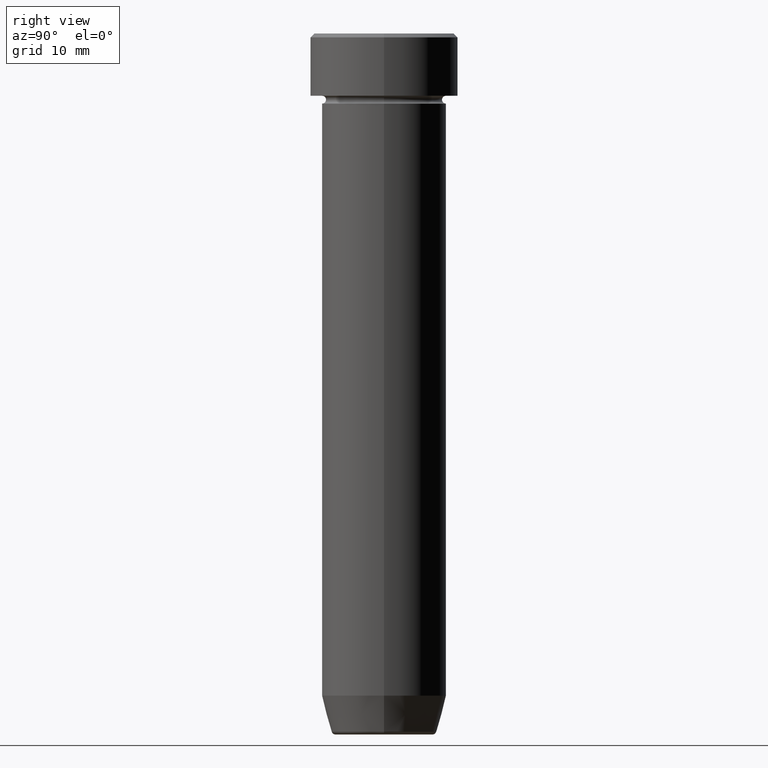
[diagram: clean part render]
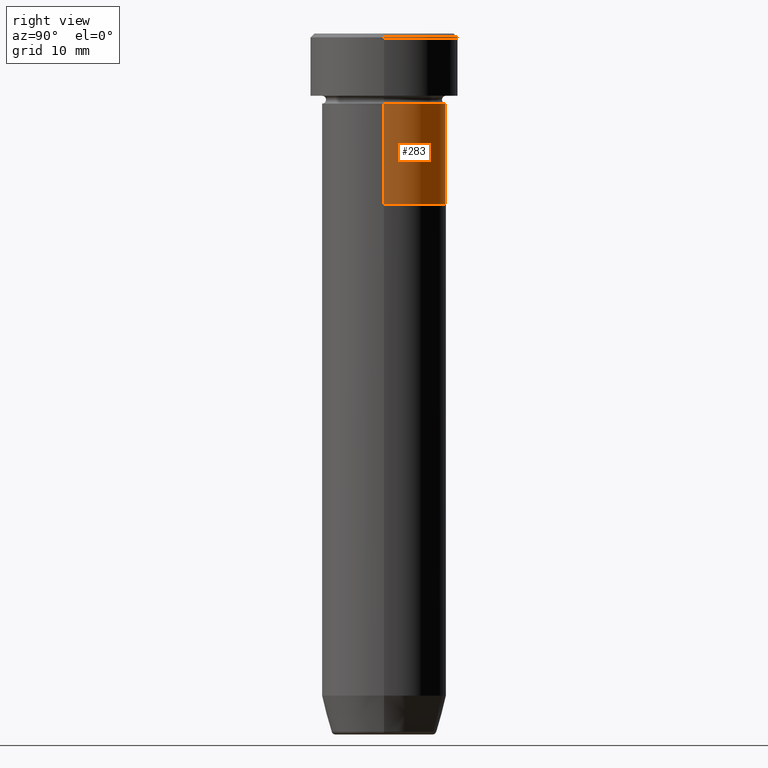
[diagram: same view with one face highlighted and labeled with its STEP entity id]
A machine part, right view. The second image highlights one B-rep face of the part: STEP entity #283.
In plain terms, the highlighted cylindrical surface (partial cylindrical patch) has radius 8 mm, axis along (-0, -0, 1).
Its self-contained STEP definition (entity closure, byte-faithful):
#25 = DIRECTION ( 'NONE',  ( -0.000000000000000000, -0.000000000000000000, 1.000000000000000000 ) ) ;
#33 = DIRECTION ( 'NONE',  ( 1.000000000000000000, 0.000000000000000000, 0.000000000000000000 ) ) ;
#46 = CARTESIAN_POINT ( 'NONE',  ( -8.000000000000000000, 9.797174393178825657E-16, 0.000000000000000000 ) ) ;
#91 = EDGE_CURVE ( 'NONE', #150, #245, #586, .T. ) ;
#94 = CIRCLE ( 'NONE', #285, 8.000000000000000000 ) ;
#97 = CARTESIAN_POINT ( 'NONE',  ( 8.000000000000000000, 0.000000000000000000, 0.000000000000000000 ) ) ;
#104 = ORIENTED_EDGE ( 'NONE', *, *, #560, .T. ) ;
#110 = DIRECTION ( 'NONE',  ( 1.000000000000000000, 0.000000000000000000, 0.000000000000000000 ) ) ;
#130 = DIRECTION ( 'NONE',  ( 1.000000000000000000, 0.000000000000000000, 0.000000000000000000 ) ) ;
#131 = AXIS2_PLACEMENT_3D ( 'NONE', #400, #25, #33 ) ;
#138 = CARTESIAN_POINT ( 'NONE',  ( 0.000000000000000000, 0.000000000000000000, -22.00000000000000000 ) ) ;
#140 = ORIENTED_EDGE ( 'NONE', *, *, #371, .F. ) ;
#150 = VERTEX_POINT ( 'NONE', #396 ) ;
#176 = FACE_OUTER_BOUND ( 'NONE', #259, .T. ) ;
#180 = CYLINDRICAL_SURFACE ( 'NONE', #309, 8.000000000000000000 ) ;
#211 = VECTOR ( 'NONE', #372, 1000.000000000000000 ) ;
#212 = VECTOR ( 'NONE', #230, 1000.000000000000000 ) ;
#230 = DIRECTION ( 'NONE',  ( -0.000000000000000000, -0.000000000000000000, 1.000000000000000000 ) ) ;
#245 = VERTEX_POINT ( 'NONE', #540 ) ;
#259 = EDGE_LOOP ( 'NONE', ( #329, #104, #520, #140 ) ) ;
#283 = ADVANCED_FACE ( 'NONE', ( #176 ), #180, .T. ) ;
#284 = LINE ( 'NONE', #46, #212 ) ;
#285 = AXIS2_PLACEMENT_3D ( 'NONE', #138, #325, #110 ) ;
#309 = AXIS2_PLACEMENT_3D ( 'NONE', #366, #319, #130 ) ;
#319 = DIRECTION ( 'NONE',  ( -0.000000000000000000, -0.000000000000000000, 1.000000000000000000 ) ) ;
#325 = DIRECTION ( 'NONE',  ( -0.000000000000000000, -0.000000000000000000, 1.000000000000000000 ) ) ;
#329 = ORIENTED_EDGE ( 'NONE', *, *, #412, .T. ) ;
#334 = VERTEX_POINT ( 'NONE', #589 ) ;
#366 = CARTESIAN_POINT ( 'NONE',  ( 0.000000000000000000, 0.000000000000000000, 0.000000000000000000 ) ) ;
#371 = EDGE_CURVE ( 'NONE', #527, #150, #380, .T. ) ;
#372 = DIRECTION ( 'NONE',  ( -0.000000000000000000, -0.000000000000000000, 1.000000000000000000 ) ) ;
#380 = LINE ( 'NONE', #97, #211 ) ;
#396 = CARTESIAN_POINT ( 'NONE',  ( 8.000000000000000000, 0.000000000000000000, -9.000000000000001776 ) ) ;
#400 = CARTESIAN_POINT ( 'NONE',  ( 0.000000000000000000, 0.000000000000000000, -9.000000000000001776 ) ) ;
#412 = EDGE_CURVE ( 'NONE', #527, #334, #94, .T. ) ;
#504 = CARTESIAN_POINT ( 'NONE',  ( 8.000000000000000000, 0.000000000000000000, -22.00000000000000000 ) ) ;
#520 = ORIENTED_EDGE ( 'NONE', *, *, #91, .F. ) ;
#527 = VERTEX_POINT ( 'NONE', #504 ) ;
#540 = CARTESIAN_POINT ( 'NONE',  ( -8.000000000000000000, 9.797174393178825657E-16, -9.000000000000001776 ) ) ;
#560 = EDGE_CURVE ( 'NONE', #334, #245, #284, .T. ) ;
#586 = CIRCLE ( 'NONE', #131, 8.000000000000000000 ) ;
#589 = CARTESIAN_POINT ( 'NONE',  ( -8.000000000000000000, 9.797174393178825657E-16, -22.00000000000000000 ) ) ;